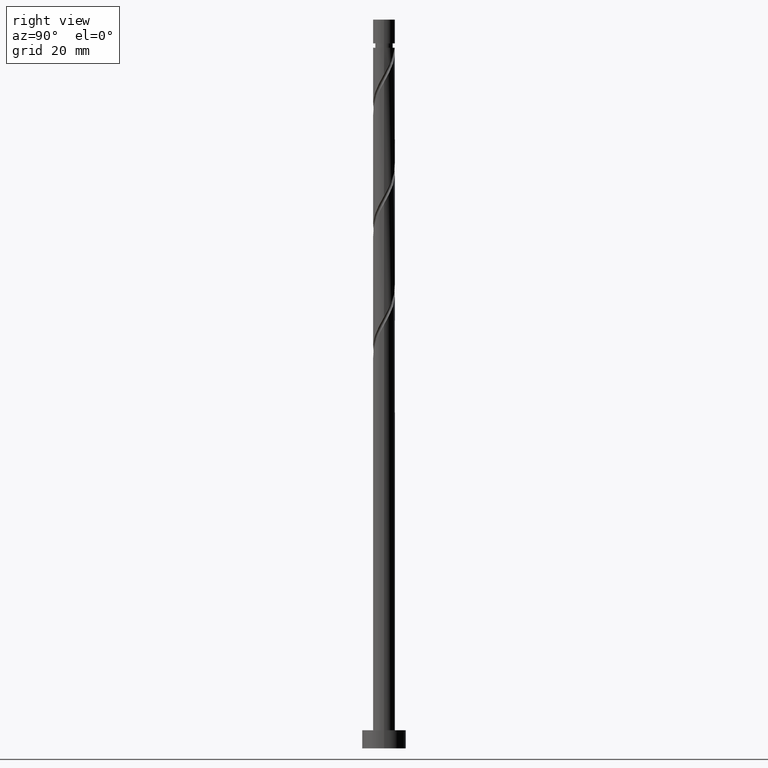
[diagram: clean part render]
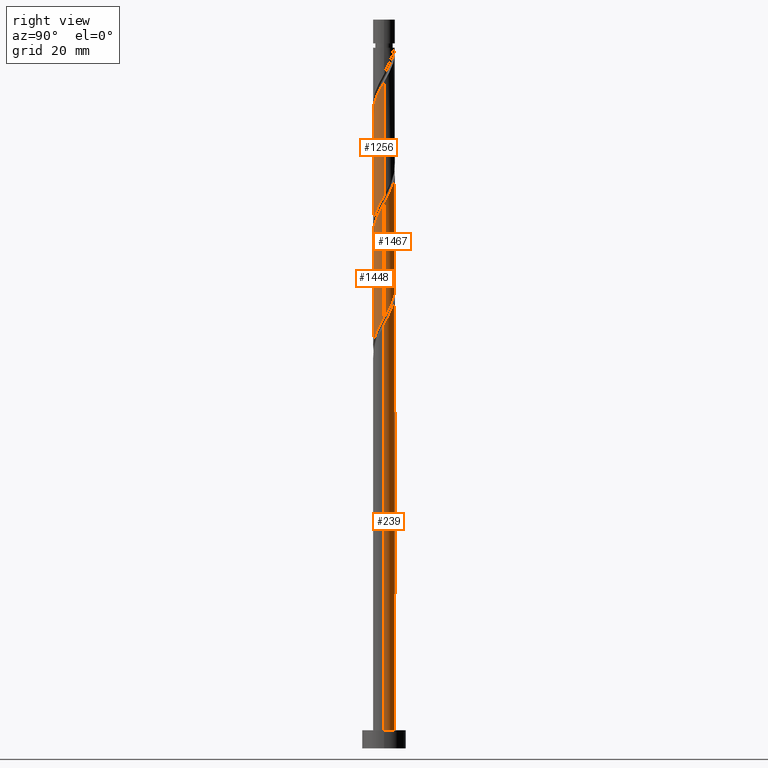
[diagram: same view with one multi-face feature highlighted, each face labeled with its STEP entity id]
A machine part, right view. The highlighted faces form ONE feature: a constant-radius fillet chain: 4 tangent blend faces with common blend radius 3 mm. The faces share edges in the B-rep.
Their STEP definitions:
[1] entity #1256 (Cylinder):
#5 = CARTESIAN_POINT ( 'NONE',  ( -1.987010638188423162, -2.247618455994264242, 139.4840378189954038 ) ) ;
#21 = DIRECTION ( 'NONE',  ( -1.000000000000000000, 0.000000000000000000, 0.000000000000000000 ) ) ;
#45 = CARTESIAN_POINT ( 'NONE',  ( 1.691106054833251715, -2.509213369244499781, 177.6784822634399177 ) ) ;
#84 = CARTESIAN_POINT ( 'NONE',  ( 0.5784892297585039200, -2.970074347914949175, 144.3451489301065465 ) ) ;
#131 = LINE ( 'NONE', #675, #809 ) ;
#135 = CARTESIAN_POINT ( 'NONE',  ( -3.000000000000000444, -0.09222585497302332458, 135.1552126066781057 ) ) ;
#162 = CARTESIAN_POINT ( 'NONE',  ( 2.844610918258239085, -0.9529893618115807818, 181.1507044856620894 ) ) ;
#189 = CARTESIAN_POINT ( 'NONE',  ( -1.337578430002084096, -2.685308910273296767, 140.8729267078843463 ) ) ;
#202 = VERTEX_POINT ( 'NONE', #1462 ) ;
#207 = CARTESIAN_POINT ( 'NONE',  ( 2.247618455994264242, -1.987010638188423162, 147.8173711523287750 ) ) ;
#215 = CARTESIAN_POINT ( 'NONE',  ( 2.939999999999999503, -0.5969924622639720679, 150.5951489301065465 ) ) ;
#223 = CARTESIAN_POINT ( 'NONE',  ( -0.5969924622639719569, -2.939999999999999503, 142.2618155967731752 ) ) ;
#225 = EDGE_CURVE ( 'NONE', #566, #535, #498, .T. ) ;
#233 =( BOUNDED_CURVE ( )  B_SPLINE_CURVE ( 2, ( #1177, #901, #215, #1432, #1299, #624, #207, #1449, #1038, #764, #1707, #84, #1030, #1416, #223, #356, #189, #1616, #5, #813, #1312, #370, #387, #1609, #678, #135, #515 ),
 .UNSPECIFIED., .F., .T. ) 
 B_SPLINE_CURVE_WITH_KNOTS ( ( 3, 2, 2, 2, 2, 2, 2, 2, 2, 2, 2, 2, 2, 3 ),
 ( 0.5545317669814465722, 0.5625000000000000000, 0.5729166666666666297, 0.5833333333333333703, 0.5937500000000000000, 0.6041666666666666297, 0.6145833333333333703, 0.6250000000000000000, 0.6354166666666666297, 0.6458333333333333703, 0.6562500000000000000, 0.6666666666666666297, 0.6770833333333333703, 0.6795317669814462391 ),
 .UNSPECIFIED. ) 
 CURVE ( )  GEOMETRIC_REPRESENTATION_ITEM ( )  RATIONAL_B_SPLINE_CURVE ( ( 0.9062941362546448332, 0.9031415850403494705, 0.9090909090909247148, 0.9013135103398430825, 0.9090909090909247148, 0.9013135103398430825, 0.9090909090909247148, 0.9013135103398430825, 0.9090909090909247148, 0.9013135103398430825, 0.9090909090909247148, 0.9013135103398430825, 0.9090909090909247148, 0.9013135103398430825, 0.9090909090909247148, 0.9013135103398430825, 0.9090909090909247148, 0.9013135103398430825, 0.9090909090909247148, 0.9013135103398430825, 0.9090909090909247148, 0.9013135103398430825, 0.9090909090909247148, 0.9013135103398430825, 0.9090909090909247148, 0.9072628343904185488, 0.9062941362546450552 ) ) 
 REPRESENTATION_ITEM ( '' )  );
#235 = DIRECTION ( 'NONE',  ( -0.000000000000000000, -0.000000000000000000, -1.000000000000000000 ) ) ;
#286 = CARTESIAN_POINT ( 'NONE',  ( -1.327489493864653092, -2.719147488601526774, 172.1229267078842895 ) ) ;
#291 = AXIS2_PLACEMENT_3D ( 'NONE', #988, #838, #21 ) ;
#302 = VERTEX_POINT ( 'NONE', #1408 ) ;
#318 = CARTESIAN_POINT ( 'NONE',  ( -2.247618455994267350, -1.987010638188423606, 170.0395933745510035 ) ) ;
#337 = DIRECTION ( 'NONE',  ( -0.000000000000000000, -0.000000000000000000, -1.000000000000000000 ) ) ;
#356 = CARTESIAN_POINT ( 'NONE',  ( -0.9840508051709166981, -2.861404451302099083, 141.5673711523287466 ) ) ;
#370 = CARTESIAN_POINT ( 'NONE',  ( -2.719147488601523222, -1.327489493864649095, 137.4007044856621462 ) ) ;
#387 = CARTESIAN_POINT ( 'NONE',  ( -2.844610918258235088, -0.9529893618115771181, 136.7062600412176323 ) ) ;
#421 = CARTESIAN_POINT ( 'NONE',  ( 0.2099341193570265773, -3.018595548697905251, 174.9007044856621462 ) ) ;
#425 = CARTESIAN_POINT ( 'NONE',  ( 3.000000000000003997, 2.243067666542998133E-15, 182.8649156082298077 ) ) ;
#459 = EDGE_CURVE ( 'NONE', #302, #566, #1209, .T. ) ;
#494 = ORIENTED_EDGE ( 'NONE', *, *, #703, .T. ) ;
#498 = LINE ( 'NONE', #1559, #587 ) ;
#515 = CARTESIAN_POINT ( 'NONE',  ( -3.000000000000000444, -6.086190268553371440E-15, 134.9920489186499708 ) ) ;
#535 = VERTEX_POINT ( 'NONE', #1615 ) ;
#566 = VERTEX_POINT ( 'NONE', #827 ) ;
#575 = CARTESIAN_POINT ( 'NONE',  ( -3.000000000000004885, -0.3015113445777630186, 166.7316753107524789 ) ) ;
#587 = VECTOR ( 'NONE', #337, 1000.000000000000000 ) ;
#624 = CARTESIAN_POINT ( 'NONE',  ( 2.509213369244494896, -1.691106054833252825, 148.5118155967732037 ) ) ;
#636 = EDGE_LOOP ( 'NONE', ( #992, #652, #494, #1329 ) ) ;
#652 = ORIENTED_EDGE ( 'NONE', *, *, #459, .F. ) ;
#675 = CARTESIAN_POINT ( 'NONE',  ( -3.000000000000000444, 0.000000000000000000, 200.0000000000000000 ) ) ;
#678 = CARTESIAN_POINT ( 'NONE',  ( -2.994334948306424327, -0.1842775552007384354, 135.3173711523287466 ) ) ;
#703 = EDGE_CURVE ( 'NONE', #302, #202, #131, .T. ) ;
#711 = CARTESIAN_POINT ( 'NONE',  ( -2.861404451302104412, -0.9840508051709158099, 167.9562600412176607 ) ) ;
#721 = CARTESIAN_POINT ( 'NONE',  ( -3.000000000000003997, 1.345840599925798939E-16, 166.1982489415631505 ) ) ;
#732 = CARTESIAN_POINT ( 'NONE',  ( 0.5969924622639716238, -2.940000000000004832, 175.5951489301065180 ) ) ;
#746 = CARTESIAN_POINT ( 'NONE',  ( -2.940000000000004832, -0.5969924622639717349, 167.2618155967732605 ) ) ;
#764 = CARTESIAN_POINT ( 'NONE',  ( 1.327489493864649095, -2.719147488601523222, 145.7340378189954606 ) ) ;
#809 = VECTOR ( 'NONE', #235, 1000.000000000000000 ) ;
#813 = CARTESIAN_POINT ( 'NONE',  ( -2.282915221543594164, -1.986023542744032921, 138.7895933745510035 ) ) ;
#827 = CARTESIAN_POINT ( 'NONE',  ( 3.000000000000003553, 2.243067666542998133E-15, 182.8649156082298077 ) ) ;
#838 = DIRECTION ( 'NONE',  ( -0.000000000000000000, -0.000000000000000000, -1.000000000000000000 ) ) ;
#901 = CARTESIAN_POINT ( 'NONE',  ( 2.999999999999999112, -0.3015113445777735102, 151.1252892161273280 ) ) ;
#936 = EDGE_CURVE ( 'NONE', #535, #202, #233, .T. ) ;
#968 = CARTESIAN_POINT ( 'NONE',  ( 0.9840508051709156989, -2.861404451302104412, 176.2895933745509751 ) ) ;
#988 = CARTESIAN_POINT ( 'NONE',  ( 0.000000000000000000, 0.000000000000000000, 200.0000000000000000 ) ) ;
#992 = ORIENTED_EDGE ( 'NONE', *, *, #225, .F. ) ;
#999 = CARTESIAN_POINT ( 'NONE',  ( 2.994334948306428323, -0.1842775552007417939, 182.5395933745509751 ) ) ;
#1030 = CARTESIAN_POINT ( 'NONE',  ( 0.1842775552007376028, -2.994334948306424327, 143.6507044856621178 ) ) ;
#1038 = CARTESIAN_POINT ( 'NONE',  ( 1.656756518304339343, -2.501031355072559137, 146.4284822634398324 ) ) ;
#1134 = CYLINDRICAL_SURFACE ( 'NONE', #291, 3.000000000000000444 ) ;
#1136 = CARTESIAN_POINT ( 'NONE',  ( 2.282915221543595941, -1.986023542744036696, 179.0673711523287750 ) ) ;
#1145 = CARTESIAN_POINT ( 'NONE',  ( -2.685308910273300764, -1.337578430002084540, 168.6507044856621178 ) ) ;
#1177 = CARTESIAN_POINT ( 'NONE',  ( 3.000000000000000000, -3.080479595385736011E-15, 151.6587155853165996 ) ) ;
#1209 =( BOUNDED_CURVE ( )  B_SPLINE_CURVE ( 2, ( #721, #575, #746, #711, #1145, #1402, #318, #1393, #1655, #286, #1258, #1551, #1645, #421, #732, #968, #1267, #45, #1511, #1136, #1677, #1378, #162, #1245, #999, #1647, #425 ),
 .UNSPECIFIED., .F., .T. ) 
 B_SPLINE_CURVE_WITH_KNOTS ( ( 3, 2, 2, 2, 2, 2, 2, 2, 2, 2, 2, 2, 2, 3 ),
 ( 0.5545317669814462391, 0.5625000000000000000, 0.5729166666666667407, 0.5833333333333332593, 0.5937500000000000000, 0.6041666666666667407, 0.6145833333333332593, 0.6250000000000000000, 0.6354166666666667407, 0.6458333333333332593, 0.6562500000000000000, 0.6666666666666667407, 0.6770833333333332593, 0.6795317669814463502 ),
 .UNSPECIFIED. ) 
 CURVE ( )  GEOMETRIC_REPRESENTATION_ITEM ( )  RATIONAL_B_SPLINE_CURVE ( ( 0.9062941362546504953, 0.9031415850403546886, 0.9090909090909301549, 0.9013135103398484116, 0.9090909090909301549, 0.9013135103398484116, 0.9090909090909301549, 0.9013135103398484116, 0.9090909090909301549, 0.9013135103398484116, 0.9090909090909301549, 0.9013135103398484116, 0.9090909090909301549, 0.9013135103398484116, 0.9090909090909301549, 0.9013135103398484116, 0.9090909090909301549, 0.9013135103398484116, 0.9090909090909301549, 0.9013135103398484116, 0.9090909090909301549, 0.9013135103398484116, 0.9090909090909301549, 0.9013135103398484116, 0.9090909090909301549, 0.9072628343904238779, 0.9062941362546504953 ) ) 
 REPRESENTATION_ITEM ( '' )  );
#1245 = CARTESIAN_POINT ( 'NONE',  ( 2.970074347914952284, -0.5784892297585086940, 181.8451489301065465 ) ) ;
#1256 = ADVANCED_FACE ( 'NONE', ( #1665 ), #1134, .T. ) ;
#1258 = CARTESIAN_POINT ( 'NONE',  ( -0.9529893618115806708, -2.844610918258239085, 172.8173711523287466 ) ) ;
#1267 = CARTESIAN_POINT ( 'NONE',  ( 1.337578430002083651, -2.685308910273301652, 176.9840378189954890 ) ) ;
#1299 = CARTESIAN_POINT ( 'NONE',  ( 2.685308910273295879, -1.337578430002085206, 149.2062600412176891 ) ) ;
#1312 = CARTESIAN_POINT ( 'NONE',  ( -2.501031355072558249, -1.656756518304340675, 138.0951489301065465 ) ) ;
#1329 = ORIENTED_EDGE ( 'NONE', *, *, #936, .F. ) ;
#1378 = CARTESIAN_POINT ( 'NONE',  ( 2.719147488601526330, -1.327489493864653092, 180.4562600412177176 ) ) ;
#1393 = CARTESIAN_POINT ( 'NONE',  ( -1.986023542744036696, -2.282915221543595941, 170.7340378189954322 ) ) ;
#1402 = CARTESIAN_POINT ( 'NONE',  ( -2.509213369244499781, -1.691106054833252381, 169.3451489301065180 ) ) ;
#1408 = CARTESIAN_POINT ( 'NONE',  ( -3.000000000000003997, 1.345840599925798692E-16, 166.1982489415631505 ) ) ;
#1416 = CARTESIAN_POINT ( 'NONE',  ( -0.2099341193570287700, -3.018595548697902586, 142.9562600412176039 ) ) ;
#1432 = CARTESIAN_POINT ( 'NONE',  ( 2.861404451302099083, -0.9840508051709180304, 149.9007044856620894 ) ) ;
#1449 = CARTESIAN_POINT ( 'NONE',  ( 1.986023542744032477, -2.282915221543594164, 147.1229267078843463 ) ) ;
#1462 = CARTESIAN_POINT ( 'NONE',  ( -3.000000000000000444, -6.086190268553371440E-15, 134.9920489186499708 ) ) ;
#1511 = CARTESIAN_POINT ( 'NONE',  ( 1.987010638188423606, -2.247618455994267794, 178.3729267078842611 ) ) ;
#1551 = CARTESIAN_POINT ( 'NONE',  ( -0.5784892297585071397, -2.970074347914953172, 173.5118155967732605 ) ) ;
#1559 = CARTESIAN_POINT ( 'NONE',  ( 3.000000000000000444, 3.673940397442060361E-16, 200.0000000000000000 ) ) ;
#1609 = CARTESIAN_POINT ( 'NONE',  ( -2.970074347914948731, -0.5784892297585046972, 136.0118155967732605 ) ) ;
#1615 = CARTESIAN_POINT ( 'NONE',  ( 3.000000000000000444, -3.080479595385736011E-15, 151.6587155853165996 ) ) ;
#1616 = CARTESIAN_POINT ( 'NONE',  ( -1.691106054833251493, -2.509213369244494896, 140.1784822634398608 ) ) ;
#1645 = CARTESIAN_POINT ( 'NONE',  ( -0.1842775552007402673, -2.994334948306428323, 174.2062600412176607 ) ) ;
#1647 = CARTESIAN_POINT ( 'NONE',  ( 3.000000000000003997, -0.09222585497301932778, 182.7017519202016445 ) ) ;
#1655 = CARTESIAN_POINT ( 'NONE',  ( -1.656756518304343784, -2.501031355072560469, 171.4284822634398893 ) ) ;
#1665 = FACE_OUTER_BOUND ( 'NONE', #636, .T. ) ;
#1677 = CARTESIAN_POINT ( 'NONE',  ( 2.501031355072560469, -1.656756518304344894, 179.7618155967732037 ) ) ;
#1707 = CARTESIAN_POINT ( 'NONE',  ( 0.9529893618115767850, -2.844610918258235532, 145.0395933745509183 ) ) ;
[2] entity #1467 (Cylinder):
#33 = CARTESIAN_POINT ( 'NONE',  ( 2.282915221543594164, 1.986023542744032477, 122.1229267078843463 ) ) ;
#40 = ORIENTED_EDGE ( 'NONE', *, *, #1631, .F. ) ;
#55 = CARTESIAN_POINT ( 'NONE',  ( -1.987010638188424050, 2.247618455994267350, 161.7062600412176607 ) ) ;
#74 = CARTESIAN_POINT ( 'NONE',  ( 0.9529893618115810039, 2.844610918258237753, 156.1507044856620610 ) ) ;
#106 =( BOUNDED_CURVE ( )  B_SPLINE_CURVE ( 2, ( #1557, #176, #1663, #595, #1133, #751, #1411, #470, #440, #1007, #74, #1160, #620, #1674, #1566, #1702, #1027, #743, #55, #1436, #1142, #1548, #326, #211, #871, #1420, #613 ),
 .UNSPECIFIED., .F., .T. ) 
 B_SPLINE_CURVE_WITH_KNOTS ( ( 3, 2, 2, 2, 2, 2, 2, 2, 2, 2, 2, 2, 2, 3 ),
 ( 0.4295317669814461836, 0.4375000000000000000, 0.4479166666666666297, 0.4583333333333333703, 0.4687500000000000000, 0.4791666666666666297, 0.4895833333333333703, 0.5000000000000000000, 0.5104166666666667407, 0.5208333333333332593, 0.5312500000000000000, 0.5416666666666667407, 0.5520833333333332593, 0.5545317669814462391 ),
 .UNSPECIFIED. ) 
 CURVE ( )  GEOMETRIC_REPRESENTATION_ITEM ( )  RATIONAL_B_SPLINE_CURVE ( ( 0.9062941362546504953, 0.9031415850403545775, 0.9090909090909301549, 0.9013135103398484116, 0.9090909090909301549, 0.9013135103398484116, 0.9090909090909301549, 0.9013135103398484116, 0.9090909090909301549, 0.9013135103398484116, 0.9090909090909301549, 0.9013135103398484116, 0.9090909090909301549, 0.9013135103398484116, 0.9090909090909301549, 0.9013135103398484116, 0.9090909090909301549, 0.9013135103398484116, 0.9090909090909301549, 0.9013135103398484116, 0.9090909090909301549, 0.9013135103398484116, 0.9090909090909301549, 0.9013135103398484116, 0.9090909090909301549, 0.9072628343904238779, 0.9062941362546504953 ) ) 
 REPRESENTATION_ITEM ( '' )  );
#131 = LINE ( 'NONE', #675, #809 ) ;
#133 = CARTESIAN_POINT ( 'NONE',  ( 2.719147488601524554, 1.327489493864647763, 120.7340378189954748 ) ) ;
#137 = CARTESIAN_POINT ( 'NONE',  ( -2.247618455994264242, 1.987010638188422718, 131.1507044856620610 ) ) ;
#152 = CARTESIAN_POINT ( 'NONE',  ( -2.509213369244494896, 1.691106054833251493, 131.8451489301065749 ) ) ;
#163 = CARTESIAN_POINT ( 'NONE',  ( 0.5969924622639722900, 2.939999999999999503, 125.5951489301065038 ) ) ;
#176 = CARTESIAN_POINT ( 'NONE',  ( 3.000000000000005329, 0.3015113445777559131, 150.0650086440857649 ) ) ;
#177 = CARTESIAN_POINT ( 'NONE',  ( 3.000000000000000444, -3.080479595385736011E-15, 118.3253822519832710 ) ) ;
#202 = VERTEX_POINT ( 'NONE', #1462 ) ;
#211 = CARTESIAN_POINT ( 'NONE',  ( -2.970074347914953172, 0.5784892297585071397, 165.1784822634398608 ) ) ;
#235 = DIRECTION ( 'NONE',  ( -0.000000000000000000, -0.000000000000000000, -1.000000000000000000 ) ) ;
#259 = CARTESIAN_POINT ( 'NONE',  ( 2.844610918258235976, 0.9529893618115753418, 120.0395933745509609 ) ) ;
#267 = CARTESIAN_POINT ( 'NONE',  ( 1.337578430002085428, 2.685308910273295879, 124.2062600412176323 ) ) ;
#290 = ORIENTED_EDGE ( 'NONE', *, *, #536, .F. ) ;
#302 = VERTEX_POINT ( 'NONE', #1408 ) ;
#307 = DIRECTION ( 'NONE',  ( -0.000000000000000000, -0.000000000000000000, -1.000000000000000000 ) ) ;
#323 = CARTESIAN_POINT ( 'NONE',  ( 3.000000000000000444, 3.673940397442060361E-16, 200.0000000000000000 ) ) ;
#326 = CARTESIAN_POINT ( 'NONE',  ( -2.844610918258239085, 0.9529893618115796716, 164.4840378189954322 ) ) ;
#386 = CARTESIAN_POINT ( 'NONE',  ( 3.000000000000000444, -3.080479595385735616E-15, 118.3253822519832710 ) ) ;
#406 = CARTESIAN_POINT ( 'NONE',  ( 0.9840508051709182524, 2.861404451302097751, 124.9007044856621178 ) ) ;
#422 = CARTESIAN_POINT ( 'NONE',  ( -2.861404451302099528, 0.9840508051709160320, 133.2340378189954322 ) ) ;
#423 = EDGE_CURVE ( 'NONE', #1518, #1252, #1690, .T. ) ;
#440 = CARTESIAN_POINT ( 'NONE',  ( 1.656756518304344006, 2.501031355072560469, 154.7618155967732037 ) ) ;
#470 = CARTESIAN_POINT ( 'NONE',  ( 1.986023542744038473, 2.282915221543595052, 154.0673711523287182 ) ) ;
#477 = ORIENTED_EDGE ( 'NONE', *, *, #423, .T. ) ;
#492 = VECTOR ( 'NONE', #307, 1000.000000000000000 ) ;
#536 = EDGE_CURVE ( 'NONE', #202, #1252, #852, .T. ) ;
#540 = CARTESIAN_POINT ( 'NONE',  ( 3.000000000000003997, -9.869497732789193205E-16, 149.5315822748964649 ) ) ;
#543 = CARTESIAN_POINT ( 'NONE',  ( -2.939999999999999503, 0.5969924622639717349, 133.9284822634398893 ) ) ;
#584 = CYLINDRICAL_SURFACE ( 'NONE', #642, 3.000000000000000444 ) ;
#595 = CARTESIAN_POINT ( 'NONE',  ( 2.861404451302104412, 0.9840508051709156989, 151.2895933745509751 ) ) ;
#613 = CARTESIAN_POINT ( 'NONE',  ( -3.000000000000003997, 1.345840599925798939E-16, 166.1982489415631505 ) ) ;
#620 = CARTESIAN_POINT ( 'NONE',  ( 0.1842775552007419881, 2.994334948306428323, 157.5395933745510035 ) ) ;
#642 = AXIS2_PLACEMENT_3D ( 'NONE', #707, #676, #1483 ) ;
#675 = CARTESIAN_POINT ( 'NONE',  ( -3.000000000000000444, 0.000000000000000000, 200.0000000000000000 ) ) ;
#676 = DIRECTION ( 'NONE',  ( -0.000000000000000000, -0.000000000000000000, -1.000000000000000000 ) ) ;
#703 = EDGE_CURVE ( 'NONE', #302, #202, #131, .T. ) ;
#707 = CARTESIAN_POINT ( 'NONE',  ( 0.000000000000000000, 0.000000000000000000, 200.0000000000000000 ) ) ;
#712 = CARTESIAN_POINT ( 'NONE',  ( 1.691106054833252825, 2.509213369244494896, 123.5118155967732321 ) ) ;
#743 = CARTESIAN_POINT ( 'NONE',  ( -1.691106054833253269, 2.509213369244498892, 161.0118155967731752 ) ) ;
#751 = CARTESIAN_POINT ( 'NONE',  ( 2.509213369244499781, 1.691106054833251715, 152.6784822634398893 ) ) ;
#809 = VECTOR ( 'NONE', #235, 1000.000000000000000 ) ;
#840 = CARTESIAN_POINT ( 'NONE',  ( -0.5784892297585056964, 2.970074347914949175, 127.6784822634399035 ) ) ;
#852 =( BOUNDED_CURVE ( )  B_SPLINE_CURVE ( 2, ( #1216, #1646, #543, #422, #1346, #152, #137, #969, #1625, #1512, #1081, #840, #952, #1379, #163, #406, #267, #712, #1246, #33, #1748, #133, #259, #1475, #1077, #940, #386 ),
 .UNSPECIFIED., .F., .T. ) 
 B_SPLINE_CURVE_WITH_KNOTS ( ( 3, 2, 2, 2, 2, 2, 2, 2, 2, 2, 2, 2, 2, 3 ),
 ( 0.6795317669814462391, 0.6875000000000000000, 0.6979166666666666297, 0.7083333333333333703, 0.7187500000000000000, 0.7291666666666666297, 0.7395833333333333703, 0.7500000000000000000, 0.7604166666666666297, 0.7708333333333333703, 0.7812500000000000000, 0.7916666666666666297, 0.8020833333333333703, 0.8045317669814461281 ),
 .UNSPECIFIED. ) 
 CURVE ( )  GEOMETRIC_REPRESENTATION_ITEM ( )  RATIONAL_B_SPLINE_CURVE ( ( 0.9062941362546450552, 0.9031415850403492485, 0.9090909090909247148, 0.9013135103398430825, 0.9090909090909247148, 0.9013135103398430825, 0.9090909090909247148, 0.9013135103398430825, 0.9090909090909247148, 0.9013135103398430825, 0.9090909090909247148, 0.9013135103398430825, 0.9090909090909247148, 0.9013135103398430825, 0.9090909090909247148, 0.9013135103398430825, 0.9090909090909247148, 0.9013135103398430825, 0.9090909090909247148, 0.9013135103398430825, 0.9090909090909247148, 0.9013135103398430825, 0.9090909090909247148, 0.9013135103398430825, 0.9090909090909247148, 0.9072628343904185488, 0.9062941362546450552 ) ) 
 REPRESENTATION_ITEM ( '' )  );
#871 = CARTESIAN_POINT ( 'NONE',  ( -2.994334948306428323, 0.1842775552007401563, 165.8729267078843179 ) ) ;
#940 = CARTESIAN_POINT ( 'NONE',  ( 3.000000000000000444, 0.09222585497302658586, 118.4885459400114485 ) ) ;
#952 = CARTESIAN_POINT ( 'NONE',  ( -0.1842775552007387407, 2.994334948306424327, 126.9840378189954180 ) ) ;
#969 = CARTESIAN_POINT ( 'NONE',  ( -1.986023542744033588, 2.282915221543594164, 130.4562600412176607 ) ) ;
#1007 = CARTESIAN_POINT ( 'NONE',  ( 1.327489493864653536, 2.719147488601526330, 155.4562600412176607 ) ) ;
#1027 = CARTESIAN_POINT ( 'NONE',  ( -1.337578430002084540, 2.685308910273300764, 160.3173711523287466 ) ) ;
#1077 = CARTESIAN_POINT ( 'NONE',  ( 2.994334948306424327, 0.1842775552007373807, 118.6507044856620752 ) ) ;
#1081 = CARTESIAN_POINT ( 'NONE',  ( -0.9529893618115774512, 2.844610918258235088, 128.3729267078842895 ) ) ;
#1133 = CARTESIAN_POINT ( 'NONE',  ( 2.685308910273301652, 1.337578430002083429, 151.9840378189954322 ) ) ;
#1142 = CARTESIAN_POINT ( 'NONE',  ( -2.501031355072560469, 1.656756518304343784, 163.0951489301065465 ) ) ;
#1160 = CARTESIAN_POINT ( 'NONE',  ( 0.5784892297585086940, 2.970074347914952284, 156.8451489301065749 ) ) ;
#1216 = CARTESIAN_POINT ( 'NONE',  ( -3.000000000000000444, -6.086190268553371440E-15, 134.9920489186499708 ) ) ;
#1246 = CARTESIAN_POINT ( 'NONE',  ( 1.987010638188423162, 2.247618455994262909, 122.8173711523287608 ) ) ;
#1252 = VERTEX_POINT ( 'NONE', #177 ) ;
#1280 = ORIENTED_EDGE ( 'NONE', *, *, #703, .F. ) ;
#1346 = CARTESIAN_POINT ( 'NONE',  ( -2.685308910273296767, 1.337578430002083874, 132.5395933745509467 ) ) ;
#1379 = CARTESIAN_POINT ( 'NONE',  ( 0.2099341193570278818, 3.018595548697901254, 126.2895933745509751 ) ) ;
#1408 = CARTESIAN_POINT ( 'NONE',  ( -3.000000000000003997, 1.345840599925798692E-16, 166.1982489415631505 ) ) ;
#1411 = CARTESIAN_POINT ( 'NONE',  ( 2.247618455994268682, 1.987010638188423162, 153.3729267078843463 ) ) ;
#1420 = CARTESIAN_POINT ( 'NONE',  ( -3.000000000000003997, 0.09222585497302168700, 166.0350852535349588 ) ) ;
#1436 = CARTESIAN_POINT ( 'NONE',  ( -2.282915221543596829, 1.986023542744036696, 162.4007044856621178 ) ) ;
#1462 = CARTESIAN_POINT ( 'NONE',  ( -3.000000000000000444, -6.086190268553371440E-15, 134.9920489186499708 ) ) ;
#1467 = ADVANCED_FACE ( 'NONE', ( #1508 ), #584, .T. ) ;
#1475 = CARTESIAN_POINT ( 'NONE',  ( 2.970074347914949175, 0.5784892297585035870, 119.3451489301065465 ) ) ;
#1483 = DIRECTION ( 'NONE',  ( -1.000000000000000000, 0.000000000000000000, 0.000000000000000000 ) ) ;
#1508 = FACE_OUTER_BOUND ( 'NONE', #1701, .T. ) ;
#1512 = CARTESIAN_POINT ( 'NONE',  ( -1.327489493864649317, 2.719147488601523222, 129.0673711523288318 ) ) ;
#1518 = VERTEX_POINT ( 'NONE', #540 ) ;
#1548 = CARTESIAN_POINT ( 'NONE',  ( -2.719147488601526774, 1.327489493864652648, 163.7895933745510035 ) ) ;
#1557 = CARTESIAN_POINT ( 'NONE',  ( 3.000000000000003997, -9.869497732789193205E-16, 149.5315822748964649 ) ) ;
#1566 = CARTESIAN_POINT ( 'NONE',  ( -0.5969924622639712908, 2.940000000000004832, 158.9284822634398608 ) ) ;
#1625 = CARTESIAN_POINT ( 'NONE',  ( -1.656756518304340675, 2.501031355072558249, 129.7618155967732037 ) ) ;
#1631 = EDGE_CURVE ( 'NONE', #1518, #302, #106, .T. ) ;
#1646 = CARTESIAN_POINT ( 'NONE',  ( -3.000000000000001776, 0.3015113445777607981, 134.4586225494607277 ) ) ;
#1663 = CARTESIAN_POINT ( 'NONE',  ( 2.940000000000004832, 0.5969924622639714018, 150.5951489301065749 ) ) ;
#1674 = CARTESIAN_POINT ( 'NONE',  ( -0.2099341193570246344, 3.018595548697905251, 158.2340378189954038 ) ) ;
#1690 = LINE ( 'NONE', #323, #492 ) ;
#1701 = EDGE_LOOP ( 'NONE', ( #40, #477, #290, #1280 ) ) ;
#1702 = CARTESIAN_POINT ( 'NONE',  ( -0.9840508051709162540, 2.861404451302103524, 159.6229267078843748 ) ) ;
#1748 = CARTESIAN_POINT ( 'NONE',  ( 2.501031355072558249, 1.656756518304340453, 121.4284822634398893 ) ) ;
[3] entity #1448 (Cylinder):
#27 = CARTESIAN_POINT ( 'NONE',  ( 0.9840508051709156989, -2.861404451302104412, 142.9562600412176323 ) ) ;
#37 = CARTESIAN_POINT ( 'NONE',  ( 0.5969924622639716238, -2.940000000000004832, 142.2618155967732321 ) ) ;
#58 = CARTESIAN_POINT ( 'NONE',  ( -3.000000000000000444, 0.000000000000000000, 200.0000000000000000 ) ) ;
#67 = LINE ( 'NONE', #58, #209 ) ;
#79 = CARTESIAN_POINT ( 'NONE',  ( -0.9529893618115806708, -2.844610918258239085, 139.4840378189954038 ) ) ;
#114 = CARTESIAN_POINT ( 'NONE',  ( 0.1842775552007376028, -2.994334948306424327, 110.3173711523287750 ) ) ;
#167 = CARTESIAN_POINT ( 'NONE',  ( 2.844610918258239085, -0.9529893618115807818, 147.8173711523288318 ) ) ;
#177 = CARTESIAN_POINT ( 'NONE',  ( 3.000000000000000444, -3.080479595385736011E-15, 118.3253822519832710 ) ) ;
#182 =( BOUNDED_CURVE ( )  B_SPLINE_CURVE ( 2, ( #1301, #1434, #1451, #1591, #1017, #893, #1563, #333, #757, #1287, #79, #1025, #342, #626, #37, #27, #549, #955, #271, #1360, #692, #1386, #167, #1239, #1251, #1272, #568 ),
 .UNSPECIFIED., .F., .T. ) 
 B_SPLINE_CURVE_WITH_KNOTS ( ( 3, 2, 2, 2, 2, 2, 2, 2, 2, 2, 2, 2, 2, 3 ),
 ( 0.3045317669814462946, 0.3125000000000000000, 0.3229166666666666297, 0.3333333333333333703, 0.3437500000000000000, 0.3541666666666666297, 0.3645833333333333703, 0.3750000000000000000, 0.3854166666666666297, 0.3958333333333333703, 0.4062500000000000000, 0.4166666666666666297, 0.4270833333333333703, 0.4295317669814461836 ),
 .UNSPECIFIED. ) 
 CURVE ( )  GEOMETRIC_REPRESENTATION_ITEM ( )  RATIONAL_B_SPLINE_CURVE ( ( 0.9062941362546503843, 0.9031415850403545775, 0.9090909090909301549, 0.9013135103398484116, 0.9090909090909301549, 0.9013135103398484116, 0.9090909090909301549, 0.9013135103398484116, 0.9090909090909301549, 0.9013135103398484116, 0.9090909090909301549, 0.9013135103398484116, 0.9090909090909301549, 0.9013135103398484116, 0.9090909090909301549, 0.9013135103398484116, 0.9090909090909301549, 0.9013135103398484116, 0.9090909090909301549, 0.9013135103398484116, 0.9090909090909301549, 0.9013135103398484116, 0.9090909090909301549, 0.9013135103398484116, 0.9090909090909301549, 0.9072628343904239889, 0.9062941362546504953 ) ) 
 REPRESENTATION_ITEM ( '' )  );
#209 = VECTOR ( 'NONE', #489, 1000.000000000000000 ) ;
#218 = CARTESIAN_POINT ( 'NONE',  ( 2.939999999999999503, -0.5969924622639720679, 117.2618155967731894 ) ) ;
#248 = CARTESIAN_POINT ( 'NONE',  ( 2.247618455994264242, -1.987010638188423162, 114.4840378189954038 ) ) ;
#271 = CARTESIAN_POINT ( 'NONE',  ( 1.987010638188423606, -2.247618455994267794, 145.0395933745510035 ) ) ;
#280 = ORIENTED_EDGE ( 'NONE', *, *, #292, .F. ) ;
#292 = EDGE_CURVE ( 'NONE', #884, #1518, #182, .T. ) ;
#307 = DIRECTION ( 'NONE',  ( -0.000000000000000000, -0.000000000000000000, -1.000000000000000000 ) ) ;
#323 = CARTESIAN_POINT ( 'NONE',  ( 3.000000000000000444, 3.673940397442060361E-16, 200.0000000000000000 ) ) ;
#329 = CARTESIAN_POINT ( 'NONE',  ( -3.000000000000000444, 2.302882804317492088E-15, 101.6587155853165996 ) ) ;
#333 = CARTESIAN_POINT ( 'NONE',  ( -1.986023542744036696, -2.282915221543595941, 137.4007044856621178 ) ) ;
#342 = CARTESIAN_POINT ( 'NONE',  ( -0.1842775552007402673, -2.994334948306428323, 140.8729267078843463 ) ) ;
#358 = CARTESIAN_POINT ( 'NONE',  ( -2.282915221543594164, -1.986023542744032921, 105.4562600412176607 ) ) ;
#365 = EDGE_LOOP ( 'NONE', ( #1188, #280, #1382, #986 ) ) ;
#366 = CARTESIAN_POINT ( 'NONE',  ( 1.327489493864649095, -2.719147488601523222, 112.4007044856621036 ) ) ;
#418 = DIRECTION ( 'NONE',  ( -0.000000000000000000, -0.000000000000000000, -1.000000000000000000 ) ) ;
#423 = EDGE_CURVE ( 'NONE', #1518, #1252, #1690, .T. ) ;
#485 = CARTESIAN_POINT ( 'NONE',  ( -0.5969924622639719569, -2.939999999999999503, 108.9284822634398751 ) ) ;
#489 = DIRECTION ( 'NONE',  ( -0.000000000000000000, -0.000000000000000000, -1.000000000000000000 ) ) ;
#492 = VECTOR ( 'NONE', #307, 1000.000000000000000 ) ;
#496 = CARTESIAN_POINT ( 'NONE',  ( -2.719147488601523222, -1.327489493864649095, 104.0673711523287608 ) ) ;
#503 = CARTESIAN_POINT ( 'NONE',  ( -2.994334948306424327, -0.1842775552007384354, 101.9840378189954606 ) ) ;
#522 = CARTESIAN_POINT ( 'NONE',  ( -3.000000000000000444, 2.302882804317492088E-15, 101.6587155853165996 ) ) ;
#540 = CARTESIAN_POINT ( 'NONE',  ( 3.000000000000003997, -9.869497732789193205E-16, 149.5315822748964649 ) ) ;
#549 = CARTESIAN_POINT ( 'NONE',  ( 1.337578430002083651, -2.685308910273301652, 143.6507044856620894 ) ) ;
#560 = FACE_OUTER_BOUND ( 'NONE', #365, .T. ) ;
#568 = CARTESIAN_POINT ( 'NONE',  ( 3.000000000000003997, -9.869497732789193205E-16, 149.5315822748964649 ) ) ;
#626 = CARTESIAN_POINT ( 'NONE',  ( 0.2099341193570265773, -3.018595548697905251, 141.5673711523287750 ) ) ;
#628 = CARTESIAN_POINT ( 'NONE',  ( -1.987010638188423162, -2.247618455994264242, 106.1507044856621036 ) ) ;
#637 = CARTESIAN_POINT ( 'NONE',  ( -2.501031355072558249, -1.656756518304340675, 104.7618155967732179 ) ) ;
#692 = CARTESIAN_POINT ( 'NONE',  ( 2.501031355072560469, -1.656756518304344894, 146.4284822634398893 ) ) ;
#695 = CYLINDRICAL_SURFACE ( 'NONE', #1337, 3.000000000000000444 ) ;
#757 = CARTESIAN_POINT ( 'NONE',  ( -1.656756518304343784, -2.501031355072560469, 138.0951489301065749 ) ) ;
#780 = CARTESIAN_POINT ( 'NONE',  ( 2.509213369244494896, -1.691106054833252825, 115.1784822634398751 ) ) ;
#784 =( BOUNDED_CURVE ( )  B_SPLINE_CURVE ( 2, ( #1575, #1181, #218, #1729, #1045, #780, #248, #1584, #1709, #366, #912, #1607, #114, #1190, #485, #1317, #1721, #1302, #628, #358, #637, #496, #895, #1453, #503, #1054, #522 ),
 .UNSPECIFIED., .F., .T. ) 
 B_SPLINE_CURVE_WITH_KNOTS ( ( 3, 2, 2, 2, 2, 2, 2, 2, 2, 2, 2, 2, 2, 3 ),
 ( 0.8045317669814461281, 0.8125000000000000000, 0.8229166666666666297, 0.8333333333333333703, 0.8437500000000000000, 0.8541666666666666297, 0.8645833333333333703, 0.8750000000000000000, 0.8854166666666666297, 0.8958333333333333703, 0.9062500000000000000, 0.9166666666666666297, 0.9270833333333333703, 0.9295317669814464612 ),
 .UNSPECIFIED. ) 
 CURVE ( )  GEOMETRIC_REPRESENTATION_ITEM ( )  RATIONAL_B_SPLINE_CURVE ( ( 0.9062941362546450552, 0.9031415850403490264, 0.9090909090909247148, 0.9013135103398430825, 0.9090909090909247148, 0.9013135103398430825, 0.9090909090909247148, 0.9013135103398430825, 0.9090909090909247148, 0.9013135103398430825, 0.9090909090909247148, 0.9013135103398430825, 0.9090909090909247148, 0.9013135103398430825, 0.9090909090909247148, 0.9013135103398430825, 0.9090909090909247148, 0.9013135103398430825, 0.9090909090909247148, 0.9013135103398430825, 0.9090909090909247148, 0.9013135103398430825, 0.9090909090909247148, 0.9013135103398430825, 0.9090909090909247148, 0.9072628343904183268, 0.9062941362546449442 ) ) 
 REPRESENTATION_ITEM ( '' )  );
#787 = EDGE_CURVE ( 'NONE', #884, #843, #67, .T. ) ;
#843 = VERTEX_POINT ( 'NONE', #329 ) ;
#884 = VERTEX_POINT ( 'NONE', #1146 ) ;
#893 = CARTESIAN_POINT ( 'NONE',  ( -2.509213369244499781, -1.691106054833252381, 136.0118155967732037 ) ) ;
#895 = CARTESIAN_POINT ( 'NONE',  ( -2.844610918258235088, -0.9529893618115771181, 103.3729267078843037 ) ) ;
#912 = CARTESIAN_POINT ( 'NONE',  ( 0.9529893618115767850, -2.844610918258235532, 111.7062600412176465 ) ) ;
#955 = CARTESIAN_POINT ( 'NONE',  ( 1.691106054833251715, -2.509213369244499781, 144.3451489301065749 ) ) ;
#957 = DIRECTION ( 'NONE',  ( -1.000000000000000000, 0.000000000000000000, 0.000000000000000000 ) ) ;
#986 = ORIENTED_EDGE ( 'NONE', *, *, #1697, .F. ) ;
#1017 = CARTESIAN_POINT ( 'NONE',  ( -2.685308910273300764, -1.337578430002084540, 135.3173711523287466 ) ) ;
#1025 = CARTESIAN_POINT ( 'NONE',  ( -0.5784892297585071397, -2.970074347914953172, 140.1784822634398608 ) ) ;
#1045 = CARTESIAN_POINT ( 'NONE',  ( 2.685308910273295879, -1.337578430002085206, 115.8729267078842895 ) ) ;
#1054 = CARTESIAN_POINT ( 'NONE',  ( -3.000000000000000444, -0.09222585497301492852, 101.8218792733447344 ) ) ;
#1146 = CARTESIAN_POINT ( 'NONE',  ( -3.000000000000003997, 7.521753575140854020E-15, 132.8649156082298077 ) ) ;
#1181 = CARTESIAN_POINT ( 'NONE',  ( 3.000000000000002665, -0.3015113445777570234, 117.7919558827940421 ) ) ;
#1188 = ORIENTED_EDGE ( 'NONE', *, *, #423, .F. ) ;
#1190 = CARTESIAN_POINT ( 'NONE',  ( -0.2099341193570287700, -3.018595548697902586, 109.6229267078843606 ) ) ;
#1239 = CARTESIAN_POINT ( 'NONE',  ( 2.970074347914952284, -0.5784892297585086940, 148.5118155967732037 ) ) ;
#1251 = CARTESIAN_POINT ( 'NONE',  ( 2.994334948306428323, -0.1842775552007417939, 149.2062600412176323 ) ) ;
#1252 = VERTEX_POINT ( 'NONE', #177 ) ;
#1272 = CARTESIAN_POINT ( 'NONE',  ( 3.000000000000003109, -0.09222585497302879243, 149.3684185868682164 ) ) ;
#1287 = CARTESIAN_POINT ( 'NONE',  ( -1.327489493864653092, -2.719147488601526774, 138.7895933745510035 ) ) ;
#1301 = CARTESIAN_POINT ( 'NONE',  ( -3.000000000000003997, 7.521753575140854020E-15, 132.8649156082298077 ) ) ;
#1302 = CARTESIAN_POINT ( 'NONE',  ( -1.691106054833251493, -2.509213369244494896, 106.8451489301065465 ) ) ;
#1317 = CARTESIAN_POINT ( 'NONE',  ( -0.9840508051709166981, -2.861404451302099083, 108.2340378189954606 ) ) ;
#1337 = AXIS2_PLACEMENT_3D ( 'NONE', #1389, #418, #957 ) ;
#1360 = CARTESIAN_POINT ( 'NONE',  ( 2.282915221543595941, -1.986023542744036696, 145.7340378189954038 ) ) ;
#1382 = ORIENTED_EDGE ( 'NONE', *, *, #787, .T. ) ;
#1386 = CARTESIAN_POINT ( 'NONE',  ( 2.719147488601526330, -1.327489493864653092, 147.1229267078843179 ) ) ;
#1389 = CARTESIAN_POINT ( 'NONE',  ( 0.000000000000000000, 0.000000000000000000, 200.0000000000000000 ) ) ;
#1434 = CARTESIAN_POINT ( 'NONE',  ( -3.000000000000004441, -0.3015113445777619638, 133.3983419774191077 ) ) ;
#1448 = ADVANCED_FACE ( 'NONE', ( #560 ), #695, .T. ) ;
#1451 = CARTESIAN_POINT ( 'NONE',  ( -2.940000000000004832, -0.5969924622639717349, 133.9284822634399177 ) ) ;
#1453 = CARTESIAN_POINT ( 'NONE',  ( -2.970074347914948731, -0.5784892297585046972, 102.6784822634398893 ) ) ;
#1518 = VERTEX_POINT ( 'NONE', #540 ) ;
#1563 = CARTESIAN_POINT ( 'NONE',  ( -2.247618455994267350, -1.987010638188423606, 136.7062600412176323 ) ) ;
#1575 = CARTESIAN_POINT ( 'NONE',  ( 3.000000000000000444, -3.080479595385735616E-15, 118.3253822519832710 ) ) ;
#1584 = CARTESIAN_POINT ( 'NONE',  ( 1.986023542744032477, -2.282915221543594164, 113.7895933745510035 ) ) ;
#1591 = CARTESIAN_POINT ( 'NONE',  ( -2.861404451302104412, -0.9840508051709158099, 134.6229267078843463 ) ) ;
#1607 = CARTESIAN_POINT ( 'NONE',  ( 0.5784892297585039200, -2.970074347914949175, 111.0118155967732179 ) ) ;
#1690 = LINE ( 'NONE', #323, #492 ) ;
#1697 = EDGE_CURVE ( 'NONE', #1252, #843, #784, .T. ) ;
#1709 = CARTESIAN_POINT ( 'NONE',  ( 1.656756518304339343, -2.501031355072559137, 113.0951489301065322 ) ) ;
#1721 = CARTESIAN_POINT ( 'NONE',  ( -1.337578430002084096, -2.685308910273296767, 107.5395933745509751 ) ) ;
#1729 = CARTESIAN_POINT ( 'NONE',  ( 2.861404451302099083, -0.9840508051709180304, 116.5673711523287608 ) ) ;
[4] entity #239 (Cylinder):
#20 = CARTESIAN_POINT ( 'NONE',  ( -2.861404451302099528, 0.9840508051709160320, 99.90070448566208938 ) ) ;
#29 = CARTESIAN_POINT ( 'NONE',  ( -2.970074347914953172, 0.5784892297585071397, 98.51181559677321786 ) ) ;
#32 = CARTESIAN_POINT ( 'NONE',  ( 0.5969924622639722900, 2.939999999999999503, 92.26181559677321786 ) ) ;
#42 = DIRECTION ( 'NONE',  ( 0.000000000000000000, 1.000000000000000000, -2.312964634635742582E-14 ) ) ;
#47 = CARTESIAN_POINT ( 'NONE',  ( 2.247618455994268682, 1.987010638188423162, 120.0395933745510035 ) ) ;
#58 = CARTESIAN_POINT ( 'NONE',  ( -3.000000000000000444, 0.000000000000000000, 200.0000000000000000 ) ) ;
#60 = CARTESIAN_POINT ( 'NONE',  ( 1.327489493864653536, 2.719147488601526330, 122.1229267078843463 ) ) ;
#67 = LINE ( 'NONE', #58, #209 ) ;
#69 = CARTESIAN_POINT ( 'NONE',  ( -2.282915221543596829, 1.986023542744036696, 129.0673711523287750 ) ) ;
#96 = ORIENTED_EDGE ( 'NONE', *, *, #380, .T. ) ;
#99 = DIRECTION ( 'NONE',  ( -1.000000000000000000, 0.000000000000000000, 0.000000000000000000 ) ) ;
#129 = VERTEX_POINT ( 'NONE', #368 ) ;
#134 = CARTESIAN_POINT ( 'NONE',  ( 0.2099341193570278818, 3.018595548697901254, 92.95626004121764652 ) ) ;
#142 = DIRECTION ( 'NONE',  ( -0.000000000000000000, -0.000000000000000000, -1.000000000000000000 ) ) ;
#149 = CARTESIAN_POINT ( 'NONE',  ( -2.844610918258239085, 0.9529893618115796716, 97.81737115232877500 ) ) ;
#159 = CARTESIAN_POINT ( 'NONE',  ( -0.9840508051709162540, 2.861404451302103524, 92.95626004121763231 ) ) ;
#190 = CARTESIAN_POINT ( 'NONE',  ( 2.685308910273301652, 1.337578430002083429, 118.6507044856621178 ) ) ;
#200 = EDGE_CURVE ( 'NONE', #1452, #1201, #1226, .T. ) ;
#209 = VECTOR ( 'NONE', #489, 1000.000000000000000 ) ;
#239 = ADVANCED_FACE ( 'NONE', ( #1047 ), #505, .T. ) ;
#242 = CARTESIAN_POINT ( 'NONE',  ( 0.5969924622639722900, 2.939999999999999503, 92.26181559677321786 ) ) ;
#273 = CARTESIAN_POINT ( 'NONE',  ( -3.000000000000000444, 2.302882804317492088E-15, 101.6587155853165996 ) ) ;
#283 = CARTESIAN_POINT ( 'NONE',  ( -1.691106054833253269, 2.509213369244498892, 94.34514893010657488 ) ) ;
#287 = AXIS2_PLACEMENT_3D ( 'NONE', #487, #1455, #99 ) ;
#301 = CARTESIAN_POINT ( 'NONE',  ( -1.691106054833253269, 2.509213369244498892, 127.6784822634398608 ) ) ;
#312 = CARTESIAN_POINT ( 'NONE',  ( -1.986023542744033588, 2.282915221543594164, 97.12292670788434634 ) ) ;
#324 = CARTESIAN_POINT ( 'NONE',  ( -1.327489493864649317, 2.719147488601523222, 95.73403781899546061 ) ) ;
#329 = CARTESIAN_POINT ( 'NONE',  ( -3.000000000000000444, 2.302882804317492088E-15, 101.6587155853165996 ) ) ;
#344 = CARTESIAN_POINT ( 'NONE',  ( -2.994334948306428323, 0.1842775552007401563, 99.20626004121766073 ) ) ;
#360 = CARTESIAN_POINT ( 'NONE',  ( 0.000000000000000000, 0.000000000000000000, 5.000000000000000000 ) ) ;
#368 = CARTESIAN_POINT ( 'NONE',  ( 3.000000000000003997, -9.869497732789193205E-16, 116.1982489415631505 ) ) ;
#380 = EDGE_CURVE ( 'NONE', #129, #1452, #1006, .T. ) ;
#410 = CARTESIAN_POINT ( 'NONE',  ( -1.987010638188424050, 2.247618455994267350, 95.03959337455098932 ) ) ;
#449 = VERTEX_POINT ( 'NONE', #32 ) ;
#457 = CARTESIAN_POINT ( 'NONE',  ( 3.000000000000000444, 3.673940397442060361E-16, 200.0000000000000000 ) ) ;
#460 = CARTESIAN_POINT ( 'NONE',  ( -3.000000000000003997, -8.523657132863393773E-16, 99.53158227489647913 ) ) ;
#483 = EDGE_CURVE ( 'NONE', #843, #449, #1154, .T. ) ;
#487 = CARTESIAN_POINT ( 'NONE',  ( 0.000000000000000000, 0.000000000000000000, 200.0000000000000000 ) ) ;
#489 = DIRECTION ( 'NONE',  ( -0.000000000000000000, -0.000000000000000000, -1.000000000000000000 ) ) ;
#505 = CYLINDRICAL_SURFACE ( 'NONE', #287, 3.000000000000000444 ) ;
#516 = CARTESIAN_POINT ( 'NONE',  ( 2.861404451302104412, 0.9840508051709156989, 117.9562600412176607 ) ) ;
#521 = ORIENTED_EDGE ( 'NONE', *, *, #787, .F. ) ;
#550 = AXIS2_PLACEMENT_3D ( 'NONE', #360, #1167, #914 ) ;
#551 = DIRECTION ( 'NONE',  ( -5.135813185032641787E-30, -2.312964634635749524E-14, -1.000000000000000000 ) ) ;
#553 = AXIS2_PLACEMENT_3D ( 'NONE', #684, #551, #42 ) ;
#582 = CARTESIAN_POINT ( 'NONE',  ( -1.337578430002084540, 2.685308910273300764, 126.9840378189954180 ) ) ;
#583 = EDGE_LOOP ( 'NONE', ( #845, #96, #1728, #1367, #1599, #1487, #654, #521 ) ) ;
#589 = CARTESIAN_POINT ( 'NONE',  ( 1.986023542744038473, 2.282915221543595052, 120.7340378189954322 ) ) ;
#609 = CARTESIAN_POINT ( 'NONE',  ( -2.970074347914953172, 0.5784892297585071397, 131.8451489301065749 ) ) ;
#654 = ORIENTED_EDGE ( 'NONE', *, *, #483, .F. ) ;
#655 = CARTESIAN_POINT ( 'NONE',  ( 3.000000000000003997, -9.869497732789193205E-16, 116.1982489415631647 ) ) ;
#684 = CARTESIAN_POINT ( 'NONE',  ( 0.000000000000000000, 0.000000000000000000, 92.26181559677327471 ) ) ;
#708 = EDGE_CURVE ( 'NONE', #129, #884, #741, .T. ) ;
#727 = CARTESIAN_POINT ( 'NONE',  ( -0.5969924622639712908, 2.940000000000004832, 125.5951489301065322 ) ) ;
#739 = CARTESIAN_POINT ( 'NONE',  ( -1.656756518304340675, 2.501031355072558249, 96.42848226343986084 ) ) ;
#741 =( BOUNDED_CURVE ( )  B_SPLINE_CURVE ( 2, ( #655, #907, #1039, #516, #190, #875, #47, #589, #1498, #60, #1506, #1405, #1689, #985, #727, #1527, #582, #301, #1373, #69, #1735, #1581, #1276, #609, #1013, #1570, #1561 ),
 .UNSPECIFIED., .F., .T. ) 
 B_SPLINE_CURVE_WITH_KNOTS ( ( 3, 2, 2, 2, 2, 2, 2, 2, 2, 2, 2, 2, 2, 3 ),
 ( 0.1795317669814464057, 0.1875000000000000000, 0.1979166666666666297, 0.2083333333333333703, 0.2187500000000000000, 0.2291666666666666297, 0.2395833333333333703, 0.2500000000000000000, 0.2604166666666666297, 0.2708333333333333703, 0.2812500000000000000, 0.2916666666666666297, 0.3020833333333333703, 0.3045317669814462946 ),
 .UNSPECIFIED. ) 
 CURVE ( )  GEOMETRIC_REPRESENTATION_ITEM ( )  RATIONAL_B_SPLINE_CURVE ( ( 0.9062941362546503843, 0.9031415850403546886, 0.9090909090909301549, 0.9013135103398484116, 0.9090909090909301549, 0.9013135103398484116, 0.9090909090909301549, 0.9013135103398484116, 0.9090909090909301549, 0.9013135103398484116, 0.9090909090909301549, 0.9013135103398484116, 0.9090909090909301549, 0.9013135103398484116, 0.9090909090909301549, 0.9013135103398484116, 0.9090909090909301549, 0.9013135103398484116, 0.9090909090909301549, 0.9013135103398484116, 0.9090909090909301549, 0.9013135103398484116, 0.9090909090909301549, 0.9013135103398484116, 0.9090909090909301549, 0.9072628343904238779, 0.9062941362546503843 ) ) 
 REPRESENTATION_ITEM ( '' )  );
#787 = EDGE_CURVE ( 'NONE', #884, #843, #67, .T. ) ;
#812 = CARTESIAN_POINT ( 'NONE',  ( -0.5784892297585056964, 2.970074347914949175, 94.34514893010656067 ) ) ;
#824 = CARTESIAN_POINT ( 'NONE',  ( -2.282915221543596829, 1.986023542744036696, 95.73403781899544640 ) ) ;
#837 = CARTESIAN_POINT ( 'NONE',  ( -2.501031355072560469, 1.656756518304343784, 96.42848226343986084 ) ) ;
#843 = VERTEX_POINT ( 'NONE', #329 ) ;
#845 = ORIENTED_EDGE ( 'NONE', *, *, #708, .F. ) ;
#846 = CARTESIAN_POINT ( 'NONE',  ( -0.5969924622639711798, 2.940000000000003944, 92.26181559677321786 ) ) ;
#868 = CARTESIAN_POINT ( 'NONE',  ( -0.9529893618115774512, 2.844610918258235088, 95.03959337455098932 ) ) ;
#875 = CARTESIAN_POINT ( 'NONE',  ( 2.509213369244499781, 1.691106054833251715, 119.3451489301065465 ) ) ;
#884 = VERTEX_POINT ( 'NONE', #1146 ) ;
#907 = CARTESIAN_POINT ( 'NONE',  ( 3.000000000000003553, 0.3015113445777641843, 116.7316753107524363 ) ) ;
#914 = DIRECTION ( 'NONE',  ( 1.000000000000000000, 0.000000000000000000, 0.000000000000000000 ) ) ;
#946 = VECTOR ( 'NONE', #142, 1000.000000000000000 ) ;
#985 = CARTESIAN_POINT ( 'NONE',  ( -0.2099341193570246344, 3.018595548697905251, 124.9007044856620894 ) ) ;
#993 = CARTESIAN_POINT ( 'NONE',  ( -2.509213369244494896, 1.691106054833251493, 98.51181559677320365 ) ) ;
#1006 = LINE ( 'NONE', #457, #1603 ) ;
#1013 = CARTESIAN_POINT ( 'NONE',  ( -2.994334948306428323, 0.1842775552007401563, 132.5395933745509467 ) ) ;
#1039 = CARTESIAN_POINT ( 'NONE',  ( 2.940000000000004832, 0.5969924622639714018, 117.2618155967732179 ) ) ;
#1047 = FACE_OUTER_BOUND ( 'NONE', #583, .T. ) ;
#1058 = CARTESIAN_POINT ( 'NONE',  ( -0.1842775552007387407, 2.994334948306424327, 93.65070448566207517 ) ) ;
#1093 =( BOUNDED_CURVE ( )  B_SPLINE_CURVE ( 2, ( #1097, #159, #1632, #283, #410, #824, #837, #1242, #149, #29, #344, #1281, #460 ),
 .UNSPECIFIED., .F., .T. ) 
 B_SPLINE_CURVE_WITH_KNOTS ( ( 3, 2, 2, 2, 2, 2, 3 ),
 ( 0.000000000000000000, 0.01041666666666662966, 0.02083333333333337034, 0.03125000000000000000, 0.04166666666666662966, 0.05208333333333337034, 0.05453176698144635709 ),
 .UNSPECIFIED. ) 
 CURVE ( )  GEOMETRIC_REPRESENTATION_ITEM ( )  RATIONAL_B_SPLINE_CURVE ( ( 0.9090909090909301549, 0.9013135103398484116, 0.9090909090909301549, 0.9013135103398484116, 0.9090909090909301549, 0.9013135103398484116, 0.9090909090909301549, 0.9013135103398484116, 0.9090909090909301549, 0.9013135103398484116, 0.9090909090909301549, 0.9072628343904238779, 0.9062941362546503843 ) ) 
 REPRESENTATION_ITEM ( '' )  );
#1097 = CARTESIAN_POINT ( 'NONE',  ( -0.5969924622639711798, 2.940000000000003944, 92.26181559677321786 ) ) ;
#1106 = CARTESIAN_POINT ( 'NONE',  ( -3.000000000000000444, 0.000000000000000000, 5.000000000000000000 ) ) ;
#1125 = CARTESIAN_POINT ( 'NONE',  ( -3.000000000000003997, -8.523657132863393773E-16, 99.53158227489647913 ) ) ;
#1146 = CARTESIAN_POINT ( 'NONE',  ( -3.000000000000003997, 7.521753575140854020E-15, 132.8649156082298077 ) ) ;
#1154 =( BOUNDED_CURVE ( )  B_SPLINE_CURVE ( 2, ( #273, #1362, #1232, #20, #1545, #993, #1536, #312, #739, #324, #868, #812, #1058, #134, #242 ),
 .UNSPECIFIED., .F., .T. ) 
 B_SPLINE_CURVE_WITH_KNOTS ( ( 3, 2, 2, 2, 2, 2, 2, 3 ),
 ( 0.9295317669814464612, 0.9375000000000000000, 0.9479166666666666297, 0.9583333333333333703, 0.9687500000000000000, 0.9791666666666666297, 0.9895833333333333703, 1.000000000000000000 ),
 .UNSPECIFIED. ) 
 CURVE ( )  GEOMETRIC_REPRESENTATION_ITEM ( )  RATIONAL_B_SPLINE_CURVE ( ( 0.9062941362546449442, 0.9031415850403493595, 0.9090909090909247148, 0.9013135103398430825, 0.9090909090909247148, 0.9013135103398430825, 0.9090909090909247148, 0.9013135103398430825, 0.9090909090909247148, 0.9013135103398430825, 0.9090909090909247148, 0.9013135103398430825, 0.9090909090909247148, 0.9013135103398430825, 0.9090909090909247148 ) ) 
 REPRESENTATION_ITEM ( '' )  );
#1159 = VERTEX_POINT ( 'NONE', #1125 ) ;
#1167 = DIRECTION ( 'NONE',  ( 0.000000000000000000, 0.000000000000000000, 1.000000000000000000 ) ) ;
#1201 = VERTEX_POINT ( 'NONE', #1106 ) ;
#1226 = CIRCLE ( 'NONE', #550, 3.000000000000000444 ) ;
#1231 = CARTESIAN_POINT ( 'NONE',  ( 3.000000000000000444, 3.673940397442060361E-16, 5.000000000000000000 ) ) ;
#1232 = CARTESIAN_POINT ( 'NONE',  ( -2.939999999999999503, 0.5969924622639717349, 100.5951489301065322 ) ) ;
#1242 = CARTESIAN_POINT ( 'NONE',  ( -2.719147488601526774, 1.327489493864652648, 97.12292670788433213 ) ) ;
#1265 = LINE ( 'NONE', #1643, #946 ) ;
#1276 = CARTESIAN_POINT ( 'NONE',  ( -2.844610918258239085, 0.9529893618115796716, 131.1507044856620894 ) ) ;
#1281 = CARTESIAN_POINT ( 'NONE',  ( -3.000000000000003553, 0.09222585497302068780, 99.36841858686831586 ) ) ;
#1315 = CIRCLE ( 'NONE', #553, 3.000000000000000444 ) ;
#1344 = EDGE_CURVE ( 'NONE', #1159, #1201, #1265, .T. ) ;
#1362 = CARTESIAN_POINT ( 'NONE',  ( -2.999999999999999556, 0.3015113445777691248, 101.1252892161273138 ) ) ;
#1367 = ORIENTED_EDGE ( 'NONE', *, *, #1344, .F. ) ;
#1373 = CARTESIAN_POINT ( 'NONE',  ( -1.987010638188424050, 2.247618455994267350, 128.3729267078843179 ) ) ;
#1405 = CARTESIAN_POINT ( 'NONE',  ( 0.5784892297585086940, 2.970074347914952284, 123.5118155967732179 ) ) ;
#1409 = VERTEX_POINT ( 'NONE', #846 ) ;
#1415 = EDGE_CURVE ( 'NONE', #1409, #449, #1315, .T. ) ;
#1452 = VERTEX_POINT ( 'NONE', #1231 ) ;
#1455 = DIRECTION ( 'NONE',  ( -0.000000000000000000, -0.000000000000000000, -1.000000000000000000 ) ) ;
#1487 = ORIENTED_EDGE ( 'NONE', *, *, #1415, .T. ) ;
#1498 = CARTESIAN_POINT ( 'NONE',  ( 1.656756518304344006, 2.501031355072560469, 121.4284822634398751 ) ) ;
#1506 = CARTESIAN_POINT ( 'NONE',  ( 0.9529893618115810039, 2.844610918258237753, 122.8173711523287608 ) ) ;
#1527 = CARTESIAN_POINT ( 'NONE',  ( -0.9840508051709162540, 2.861404451302103524, 126.2895933745509609 ) ) ;
#1536 = CARTESIAN_POINT ( 'NONE',  ( -2.247618455994264242, 1.987010638188422718, 97.81737115232876079 ) ) ;
#1541 = EDGE_CURVE ( 'NONE', #1409, #1159, #1093, .T. ) ;
#1545 = CARTESIAN_POINT ( 'NONE',  ( -2.685308910273296767, 1.337578430002083874, 99.20626004121766073 ) ) ;
#1561 = CARTESIAN_POINT ( 'NONE',  ( -3.000000000000003997, 7.521753575140854020E-15, 132.8649156082298077 ) ) ;
#1570 = CARTESIAN_POINT ( 'NONE',  ( -3.000000000000003553, 0.09222585497302279722, 132.7017519202016445 ) ) ;
#1581 = CARTESIAN_POINT ( 'NONE',  ( -2.719147488601526774, 1.327489493864652648, 130.4562600412176607 ) ) ;
#1599 = ORIENTED_EDGE ( 'NONE', *, *, #1541, .F. ) ;
#1603 = VECTOR ( 'NONE', #1641, 1000.000000000000000 ) ;
#1632 = CARTESIAN_POINT ( 'NONE',  ( -1.337578430002084540, 2.685308910273300764, 93.65070448566208938 ) ) ;
#1641 = DIRECTION ( 'NONE',  ( -0.000000000000000000, -0.000000000000000000, -1.000000000000000000 ) ) ;
#1643 = CARTESIAN_POINT ( 'NONE',  ( -3.000000000000000444, 0.000000000000000000, 200.0000000000000000 ) ) ;
#1689 = CARTESIAN_POINT ( 'NONE',  ( 0.1842775552007419881, 2.994334948306428323, 124.2062600412176465 ) ) ;
#1728 = ORIENTED_EDGE ( 'NONE', *, *, #200, .T. ) ;
#1735 = CARTESIAN_POINT ( 'NONE',  ( -2.501031355072560469, 1.656756518304343784, 129.7618155967731752 ) ) ;